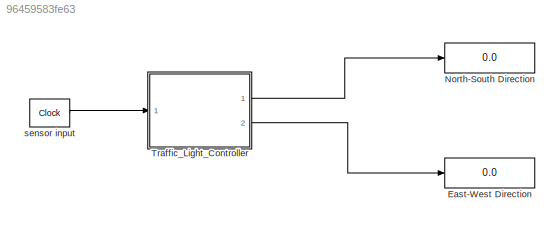
MODEL slx_96459583fe63
KIND model
CONFIG AbsTol = auto
CONFIG EnableMultiTasking = on
CONFIG FixedStep = .1
CONFIG MaxStep = auto
CONFIG MinStep = auto
CONFIG RelTol = 1e-3
CONFIG SampleTimeConstraint = Unconstrained
CONFIG SolverName = FixedStepDiscrete
CONFIG StartTime = 0.0
CONFIG StopTime = inf
BLOCK [Display] East-West Direction
  Decimation = 1
  Ports = [1]
BLOCK [Display] North-South Direction
  Decimation = 1
  Ports = [1]
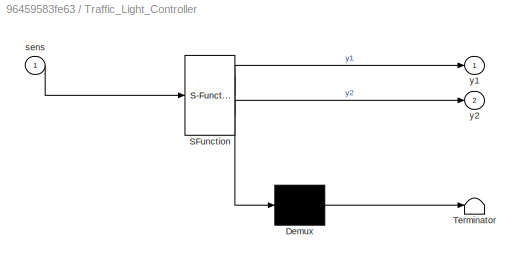
BLOCK [SubSystem] Traffic_Light_Controller
  ErrorFcn = Stateflow.Translate.translate
  PermitHierarchicalResolution = ExplicitOnly
  Ports = [1, 2]
  RequestExecContextInheritance = off
  SFBlockType = Chart
  TreatAsAtomicUnit = on
BLOCK [Demux] Traffic_Light_Controller/ Demux 
  Outputs = 1
  Ports = [1, 1]
BLOCK [S-Function] Traffic_Light_Controller/ SFunction 
  EnableBusSupport = on
  FunctionName = sf_sfun
  PortCounts = [1 3]
  Ports = [1, 3]
  SFcnIsStateOwnerBlock = off
  SFunctionDeploymentMode = off
  Tag = Stateflow S-Function 2
BLOCK [Terminator] Traffic_Light_Controller/ Terminator 
BLOCK [Inport] Traffic_Light_Controller/sens
BLOCK [Outport] Traffic_Light_Controller/y1
  VectorParamsAs1DForOutWhenUnconnected = off
BLOCK [Outport] Traffic_Light_Controller/y2
  Port = 2
  VectorParamsAs1DForOutWhenUnconnected = off
BLOCK [Reference] sensor input  REF=simulink_extras/Flip Flops/Clock
  Ports = [0, 1]
  SourceBlock = simulink_extras/Flip Flops/Clock
  SourceProductBaseCode = SL
  SourceType = Digital clock
LINE Traffic_Light_Controller:1 -> North-South Direction:1
LINE Traffic_Light_Controller:2 -> East-West Direction:1
LINE sensor input:1 -> Traffic_Light_Controller:1
CHART Traffic_Light_Controller states=5 transitions=6
  STATE_LABEL 'Stop\ny1 = Red;\ny2 = Green;'
  STATE_LABEL 'StopForTraffic\ny1 = Red;\ny2 = Green;'
  STATE_LABEL 'StopToGo\ny1 = Red;\ny2 = Yellow;'
  STATE_LABEL 'GoToStop\ny1 = Yellow;\ny2 = Red;'
  STATE_LABEL 'Go\ny1 = Green;\ny2 = Red;'
CHART  states=0 transitions=0
